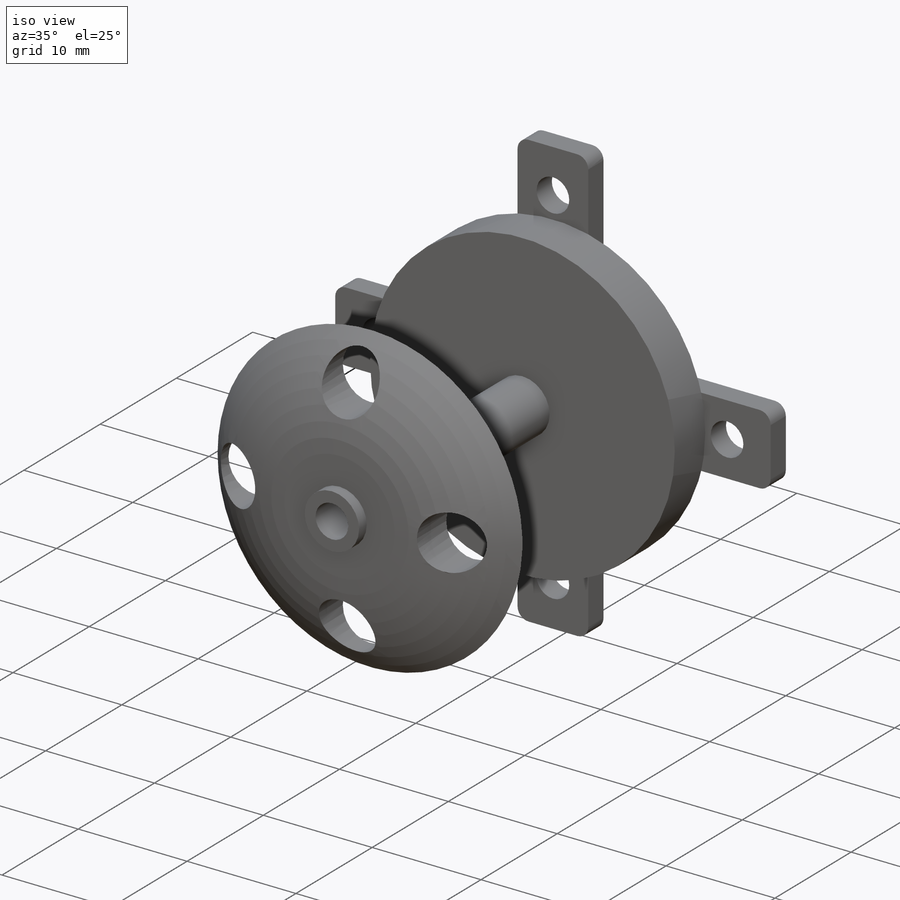
[diagram: iso view]
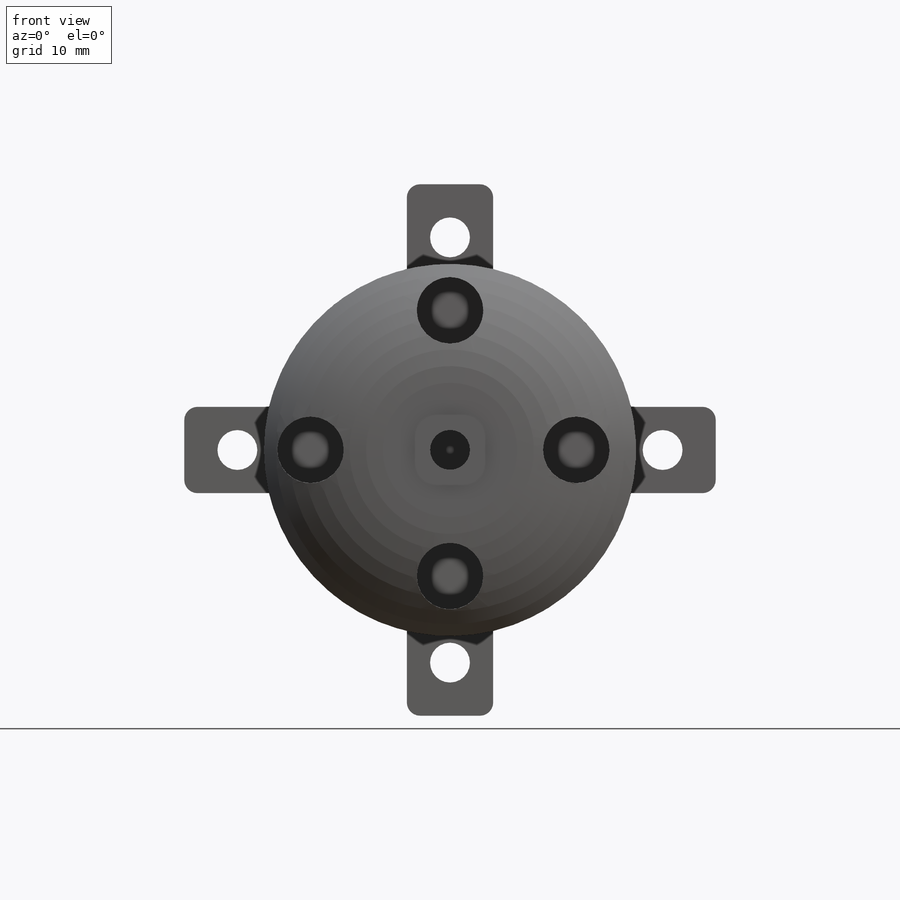
[diagram: front view]
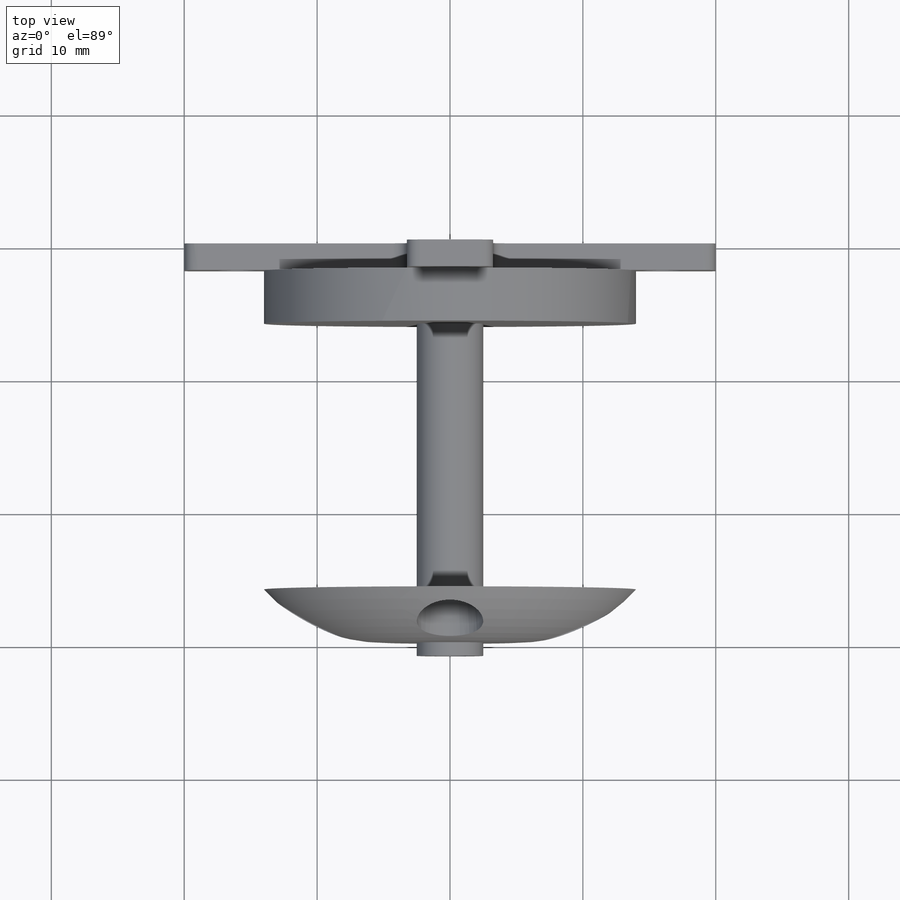
[diagram: top view]
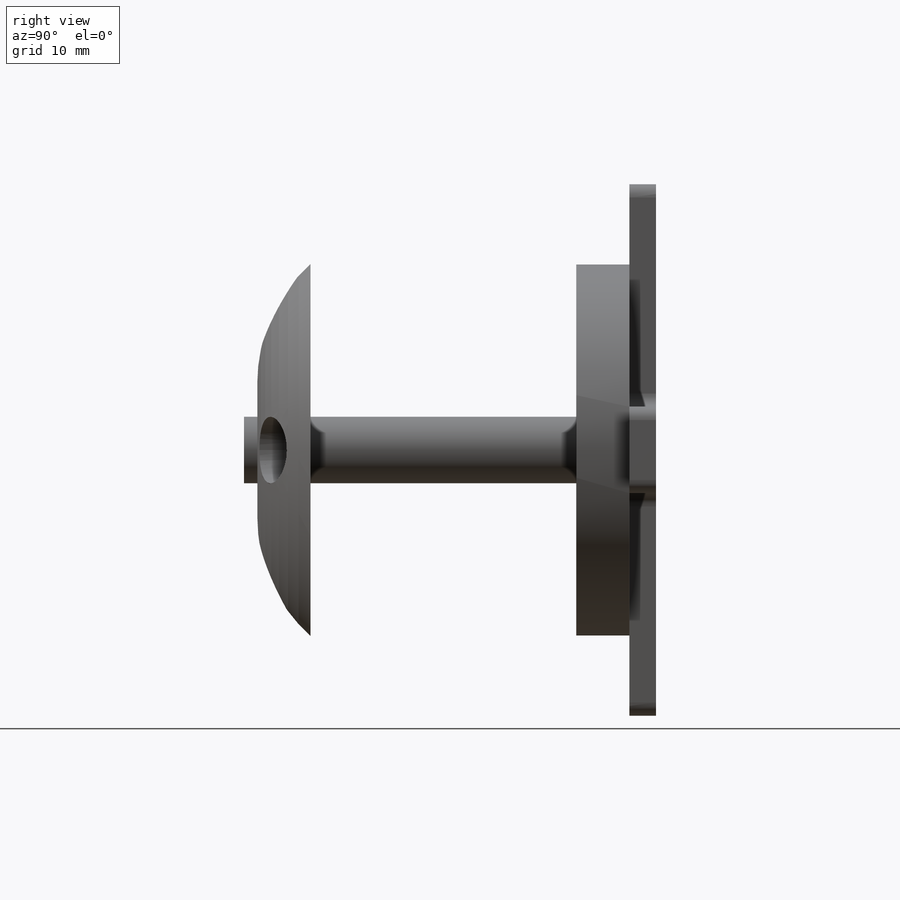
[diagram: right view]
SOLIDWORKS PART (.sldprt)
format: sldprt  version: not decoded by parser v0  size: 376,320 bytes
history: native  units: mm
features: sketch x9, extrude x5, cut_extrude x4, plane x3, fillet x3, material x1 (+9 scaffold rows collapsed)
feature tree (34):
  scaffold x9  (default folders/planes/origin — collapsed)
  material  "Matériau <non spécifié>"
  plane  "Plan de face"
  plane  "Plan de dessus"
  plane  "Plan de droite"
  sketch  "Esquisse1"  dims[D1=40.0mm D2=40.0mm D3=6.5mm D4=6.5mm D5=16.75mm D6=16.75mm]
  extrude  "Boss.-Extru.1"  Depth=2mm
  sketch  "Esquisse2"  dims[D1=3.0mm D2=3.0mm D3=3.0mm D4=3.0mm D5=4.0mm D6=4.0mm D7=4.0mm D8=4.0mm]
  cut_extrude  "Enlèv. mat.-Extru.1"  Depth=12mm
  fillet  "Congé1"  Radius=1mm
  fillet  "Congé2"  Radius=1mm
  sketch  "Esquisse3"  dims[D1=28.0mm]
  extrude  "Boss.-Extru.2"  Depth=4mm
  sketch  "Esquisse4"  dims[D1=3.0mm D2=20.0mm D3=20.0mm]
  cut_extrude  "Enlèv. mat.-Extru.2"  Depth=1mm
  sketch  "Esquisse6"  dims[D1=5.0mm]
  extrude  "Boss.-Extru.3"  Depth=20mm
  sketch  "Esquisse7"  dims[D1=28.0mm]
  extrude  "Boss.-Extru.4"  Depth=4mm
  fillet  "Congé3"  Radius=12mm
  sketch  "Esquisse8"  dims[D1=5.0mm D4=3.0mm D2=20.0mm D3=20.0mm]
  extrude  "Boss.-Extru.5"  Depth=1mm
  sketch  "Esquisse9"  dims[D1=5.0mm D2=5.0mm D3=5.0mm D4=5.0mm D5=20.0mm D6=20.0mm D7=9.5mm D8=9.5mm]
  cut_extrude  "Enlèv. mat.-Extru.3"  Depth=11mm
  sketch  "Esquisse10"  dims[D1=3.0mm]
  cut_extrude  "Enlèv. mat.-Extru.4"  Depth=25mm
decode coverage: 21 of 21 modeling features carry decoded parameters
note: suppression state not decoded; provenance and decode notes live in map.json
